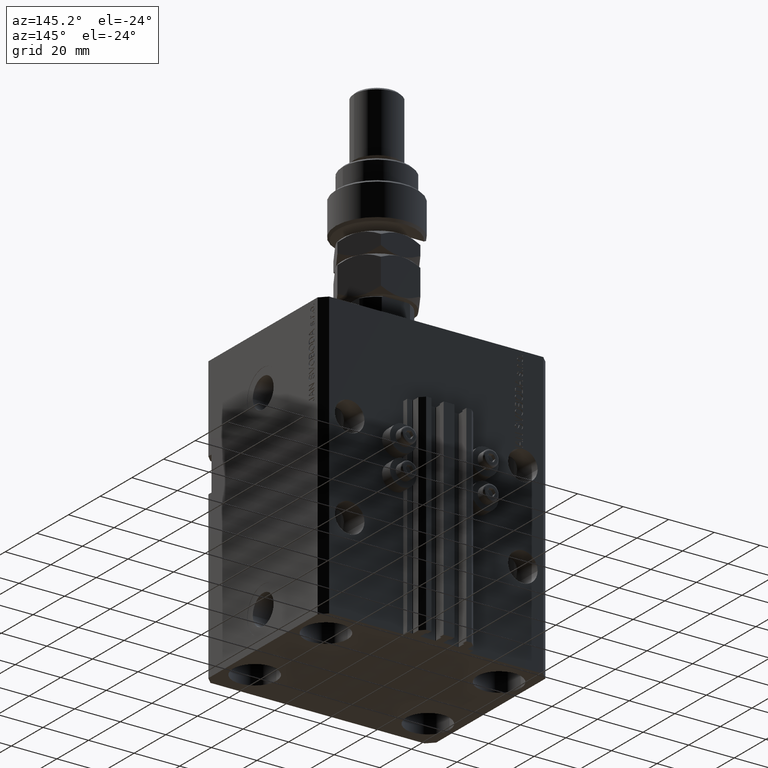
[diagram: clean part render]
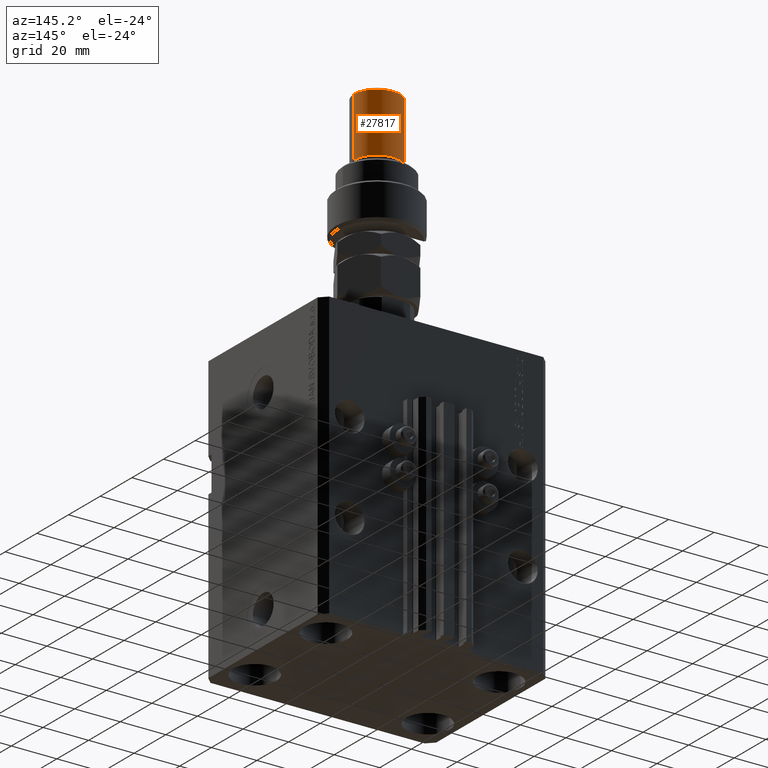
[diagram: same view with one face highlighted and labeled with its STEP entity id]
A machine part, auxiliary view. The second image highlights one B-rep face of the part: STEP entity #27817.
In plain terms, the highlighted cylindrical surface (edge-blend (fillet) strip) has radius 10 mm, axis along (-0, -0, -1).
Its self-contained STEP definition (entity closure, byte-faithful):
#4775 = AXIS2_PLACEMENT_3D ( 'NONE', #15318, #24085, #43705 ) ;
#4884 = AXIS2_PLACEMENT_3D ( 'NONE', #46627, #27246, #50759 ) ;
#8680 = CARTESIAN_POINT ( 'NONE',  ( 0.000000000000000000, 0.000000000000000000, 29.00000000000000711 ) ) ;
#9461 = CARTESIAN_POINT ( 'NONE',  ( 10.00000000000000000, 1.224646799147353256E-15, 56.00000000000000711 ) ) ;
#13020 = EDGE_LOOP ( 'NONE', ( #17903, #43927, #39986, #14487 ) ) ;
#13047 = VECTOR ( 'NONE', #25192, 1000.000000000000000 ) ;
#14487 = ORIENTED_EDGE ( 'NONE', *, *, #47235, .F. ) ;
#15318 = CARTESIAN_POINT ( 'NONE',  ( 0.000000000000000000, 0.000000000000000000, 54.99999999999998579 ) ) ;
#17422 = LINE ( 'NONE', #25931, #21127 ) ;
#17903 = ORIENTED_EDGE ( 'NONE', *, *, #29236, .T. ) ;
#21038 = DIRECTION ( 'NONE',  ( -0.000000000000000000, -0.000000000000000000, 1.000000000000000000 ) ) ;
#21127 = VECTOR ( 'NONE', #21798, 1000.000000000000000 ) ;
#21798 = DIRECTION ( 'NONE',  ( -0.000000000000000000, -0.000000000000000000, -1.000000000000000000 ) ) ;
#23668 = AXIS2_PLACEMENT_3D ( 'NONE', #8680, #21038, #31887 ) ;
#24085 = DIRECTION ( 'NONE',  ( 0.000000000000000000, 0.000000000000000000, -1.000000000000000000 ) ) ;
#25192 = DIRECTION ( 'NONE',  ( -0.000000000000000000, -0.000000000000000000, -1.000000000000000000 ) ) ;
#25931 = CARTESIAN_POINT ( 'NONE',  ( -10.00000000000000000, 0.000000000000000000, 56.00000000000000711 ) ) ;
#26326 = EDGE_CURVE ( 'NONE', #27144, #48200, #44820, .T. ) ;
#27144 = VERTEX_POINT ( 'NONE', #46066 ) ;
#27246 = DIRECTION ( 'NONE',  ( -0.000000000000000000, -0.000000000000000000, -1.000000000000000000 ) ) ;
#27817 = ADVANCED_FACE ( 'NONE', ( #36008 ), #30874, .T. ) ;
#29236 = EDGE_CURVE ( 'NONE', #38393, #27144, #49311, .T. ) ;
#30874 = CYLINDRICAL_SURFACE ( 'NONE', #4884, 10.00000000000000000 ) ;
#31887 = DIRECTION ( 'NONE',  ( 1.000000000000000000, 0.000000000000000000, 0.000000000000000000 ) ) ;
#31957 = CARTESIAN_POINT ( 'NONE',  ( 10.00000000000000000, 1.224646799147353256E-15, 29.00000000000000711 ) ) ;
#34043 = CARTESIAN_POINT ( 'NONE',  ( -10.00000000000000000, 0.000000000000000000, 29.00000000000000711 ) ) ;
#36008 = FACE_OUTER_BOUND ( 'NONE', #13020, .T. ) ;
#38393 = VERTEX_POINT ( 'NONE', #42549 ) ;
#39986 = ORIENTED_EDGE ( 'NONE', *, *, #47144, .T. ) ;
#41313 = VERTEX_POINT ( 'NONE', #34043 ) ;
#42549 = CARTESIAN_POINT ( 'NONE',  ( -10.00000000000000000, 0.000000000000000000, 54.99999999999998579 ) ) ;
#43705 = DIRECTION ( 'NONE',  ( 1.000000000000000000, 0.000000000000000000, 0.000000000000000000 ) ) ;
#43927 = ORIENTED_EDGE ( 'NONE', *, *, #26326, .T. ) ;
#44820 = LINE ( 'NONE', #9461, #13047 ) ;
#45961 = CIRCLE ( 'NONE', #23668, 10.00000000000000000 ) ;
#46066 = CARTESIAN_POINT ( 'NONE',  ( 10.00000000000000000, 1.224646799147353256E-15, 54.99999999999998579 ) ) ;
#46627 = CARTESIAN_POINT ( 'NONE',  ( 0.000000000000000000, 0.000000000000000000, 56.00000000000000711 ) ) ;
#47144 = EDGE_CURVE ( 'NONE', #48200, #41313, #45961, .T. ) ;
#47235 = EDGE_CURVE ( 'NONE', #38393, #41313, #17422, .T. ) ;
#48200 = VERTEX_POINT ( 'NONE', #31957 ) ;
#49311 = CIRCLE ( 'NONE', #4775, 10.00000000000000000 ) ;
#50759 = DIRECTION ( 'NONE',  ( -1.000000000000000000, 0.000000000000000000, 0.000000000000000000 ) ) ;